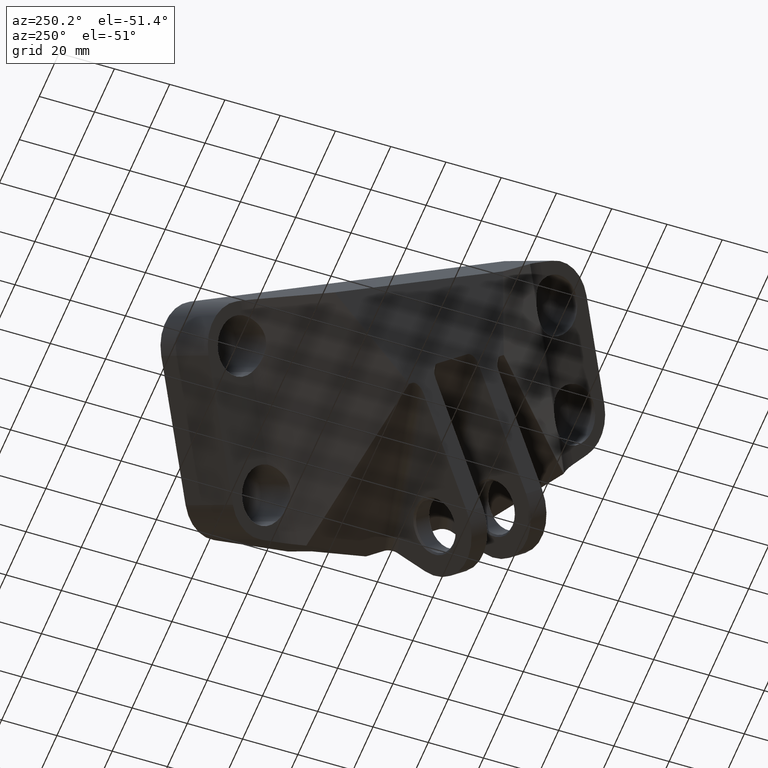
[diagram: clean part render]
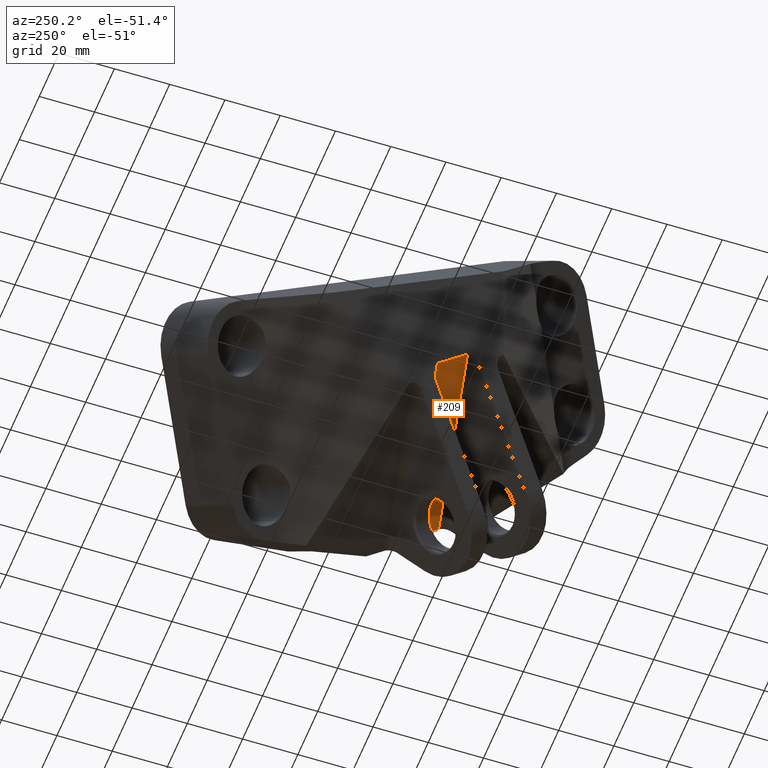
[diagram: same view with one face highlighted and labeled with its STEP entity id]
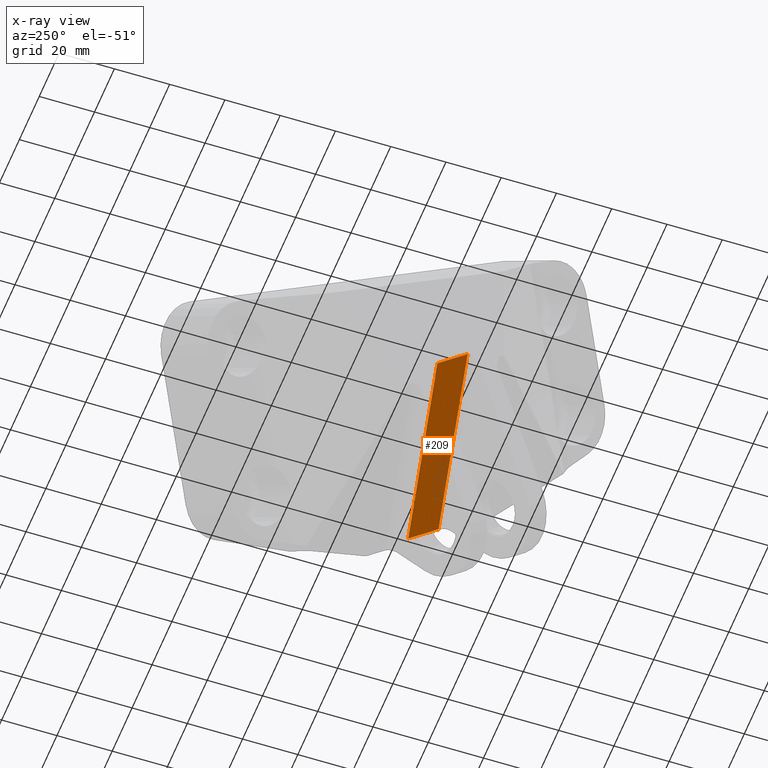
[diagram: x-ray of the same camera — body ghosted, the highlighted face saturated]
A machine part, auxiliary view. The second image highlights one B-rep face of the part: STEP entity #209.
The next image is the same camera in x-ray: the body ghosted, the highlighted face saturated — about 18% of this face is hidden behind the body in this view.
In plain terms, the highlighted planar face has unit normal (0.284, 0.6353, 0.7181).
Its self-contained STEP definition (entity closure, byte-faithful):
#173=FACE_OUTER_BOUND('',#356,.T.);
#209=ADVANCED_FACE('',(#173),#257,.F.);
#257=PLANE('',#1172);
#356=EDGE_LOOP('',(#703,#704,#705,#706));
#472=LINE('',#1761,#546);
#473=LINE('',#1764,#547);
#474=LINE('',#1766,#548);
#475=LINE('',#1768,#549);
#546=VECTOR('',#1404,1.);
#547=VECTOR('',#1405,1.);
#548=VECTOR('',#1406,1.);
#549=VECTOR('',#1407,1.);
#703=ORIENTED_EDGE('',*,*,#1036,.F.);
#704=ORIENTED_EDGE('',*,*,#1037,.T.);
#705=ORIENTED_EDGE('',*,*,#1038,.F.);
#706=ORIENTED_EDGE('',*,*,#1039,.T.);
#913=VERTEX_POINT('',#1762);
#914=VERTEX_POINT('',#1763);
#915=VERTEX_POINT('',#1765);
#916=VERTEX_POINT('',#1767);
#1036=EDGE_CURVE('',#913,#914,#472,.T.);
#1037=EDGE_CURVE('',#913,#915,#473,.T.);
#1038=EDGE_CURVE('',#916,#915,#474,.T.);
#1039=EDGE_CURVE('',#916,#914,#475,.T.);
#1172=AXIS2_PLACEMENT_3D('',#1769,#1408,#1409);
#1404=DIRECTION('',(-1.,0.,0.));
#1405=DIRECTION('',(0.,0.958827575490365,-0.283988873865277));
#1406=DIRECTION('',(1.,0.,0.));
#1407=DIRECTION('',(0.,-0.958827575490365,0.283988873865277));
#1408=DIRECTION('',(0.,-0.283988873865277,-0.958827575490365));
#1409=DIRECTION('',(0.,0.958827575490365,-0.283988873865277));
#1761=CARTESIAN_POINT('',(-2.502,-1.36759816601659,2.22047891516102));
#1762=CARTESIAN_POINT('',(-2.627,-1.36759816601659,2.22047891516102));
#1763=CARTESIAN_POINT('',(-3.202,-1.36759816601659,2.22047891516102));
#1764=CARTESIAN_POINT('',(-2.627,1.17050936585679,1.46873343124848));
#1765=CARTESIAN_POINT('',(-2.627,1.17050936585679,1.46873343124848));
#1766=CARTESIAN_POINT('',(0.0854999999999957,1.17050936585679,1.46873343124848));
#1767=CARTESIAN_POINT('',(-3.202,1.17050936585679,1.46873343124848));
#1768=CARTESIAN_POINT('',(-3.202,-1.36759816601658,2.22047891516102));
#1769=CARTESIAN_POINT('',(-2.502,-3.61142444535935,2.8850631579473));